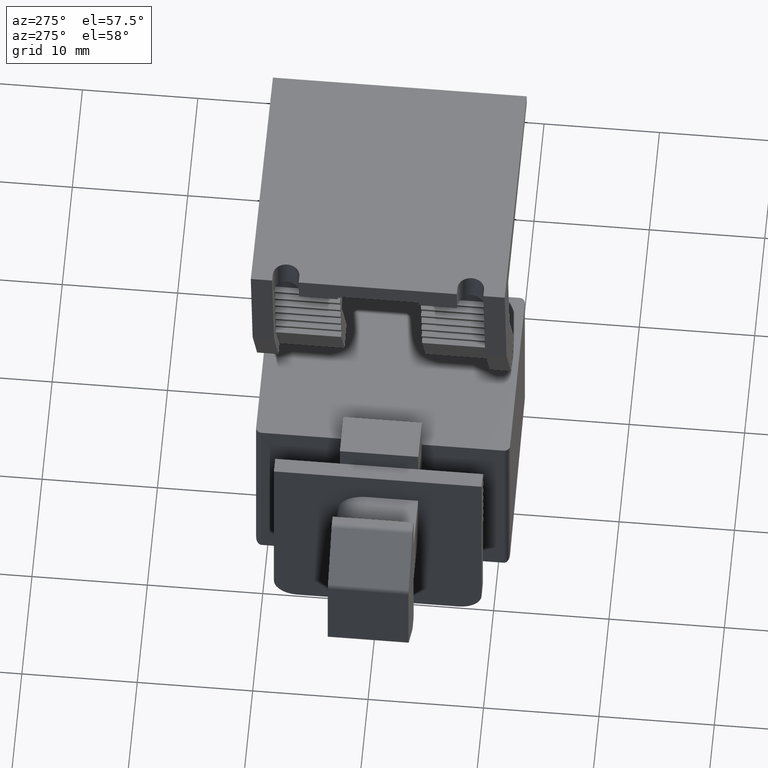
[diagram: clean part render]
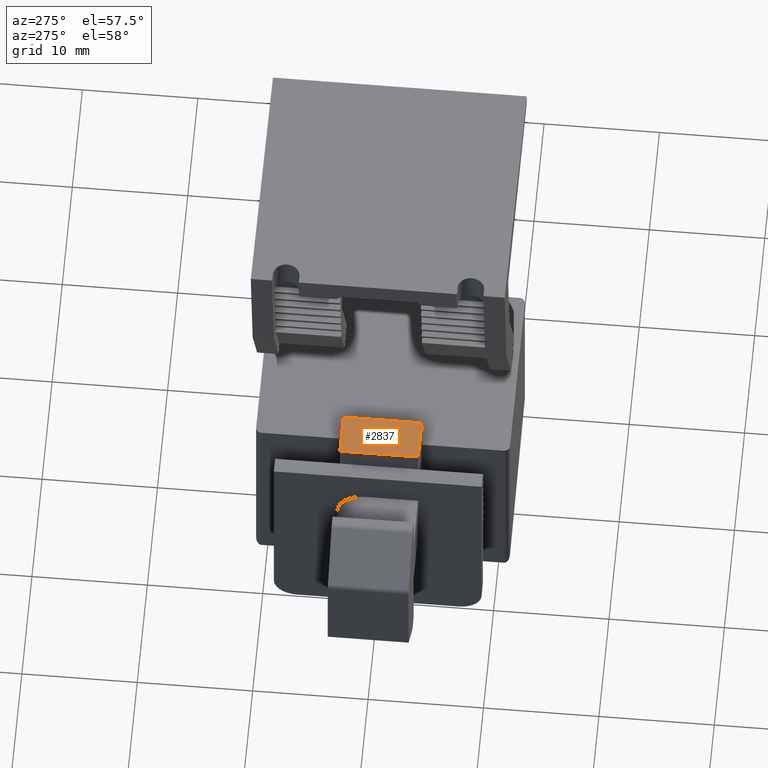
[diagram: same view with one face highlighted and labeled with its STEP entity id]
A machine part, auxiliary view. The second image highlights one B-rep face of the part: STEP entity #2837.
In plain terms, the highlighted planar face has unit normal (0, -0, 1).
Its self-contained STEP definition (entity closure, byte-faithful):
#63=PLANE('',#3090);
#210=FACE_OUTER_BOUND('',#360,.T.);
#360=EDGE_LOOP('',(#2219,#2220,#2221,#2222));
#618=LINE('',#4280,#991);
#622=LINE('',#4287,#995);
#623=LINE('',#4290,#996);
#624=LINE('',#4291,#997);
#991=VECTOR('',#3498,10.);
#995=VECTOR('',#3504,10.);
#996=VECTOR('',#3507,10.);
#997=VECTOR('',#3508,10.);
#1352=VERTEX_POINT('',#4277);
#1353=VERTEX_POINT('',#4279);
#1355=VERTEX_POINT('',#4285);
#1356=VERTEX_POINT('',#4289);
#1674=EDGE_CURVE('',#1352,#1353,#618,.T.);
#1678=EDGE_CURVE('',#1352,#1355,#622,.T.);
#1679=EDGE_CURVE('',#1356,#1355,#623,.T.);
#1680=EDGE_CURVE('',#1353,#1356,#624,.T.);
#2219=ORIENTED_EDGE('',*,*,#1678,.T.);
#2220=ORIENTED_EDGE('',*,*,#1679,.F.);
#2221=ORIENTED_EDGE('',*,*,#1680,.F.);
#2222=ORIENTED_EDGE('',*,*,#1674,.F.);
#2837=ADVANCED_FACE('',(#210),#63,.T.);
#3090=AXIS2_PLACEMENT_3D('',#4288,#3505,#3506);
#3498=DIRECTION('',(1.,0.,0.));
#3504=DIRECTION('',(0.,1.,0.));
#3505=DIRECTION('center_axis',(0.,0.,-1.));
#3506=DIRECTION('ref_axis',(-1.,0.,0.));
#3507=DIRECTION('',(-1.,0.,0.));
#3508=DIRECTION('',(0.,1.,0.));
#4277=CARTESIAN_POINT('',(1.3,-3.4,-2.));
#4279=CARTESIAN_POINT('',(4.8,-3.4,-2.));
#4280=CARTESIAN_POINT('',(4.8,-3.4,-2.));
#4285=CARTESIAN_POINT('',(1.3,3.4,-2.));
#4287=CARTESIAN_POINT('',(1.3,0.,-2.));
#4288=CARTESIAN_POINT('Origin',(4.8,0.,-2.));
#4289=CARTESIAN_POINT('',(4.8,3.4,-2.));
#4290=CARTESIAN_POINT('',(4.8,3.4,-2.));
#4291=CARTESIAN_POINT('',(4.8,0.,-2.));